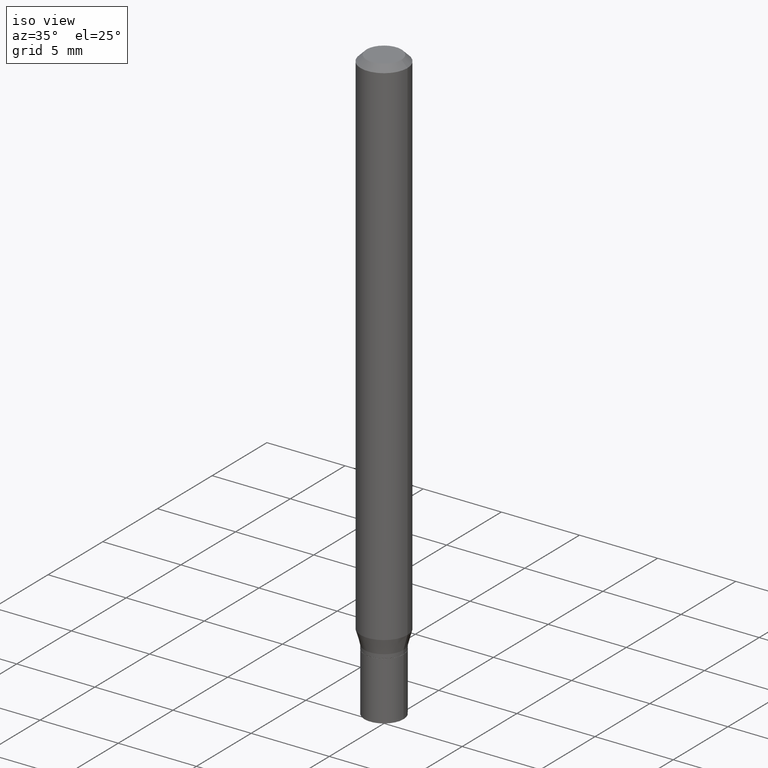
[diagram: clean part render]
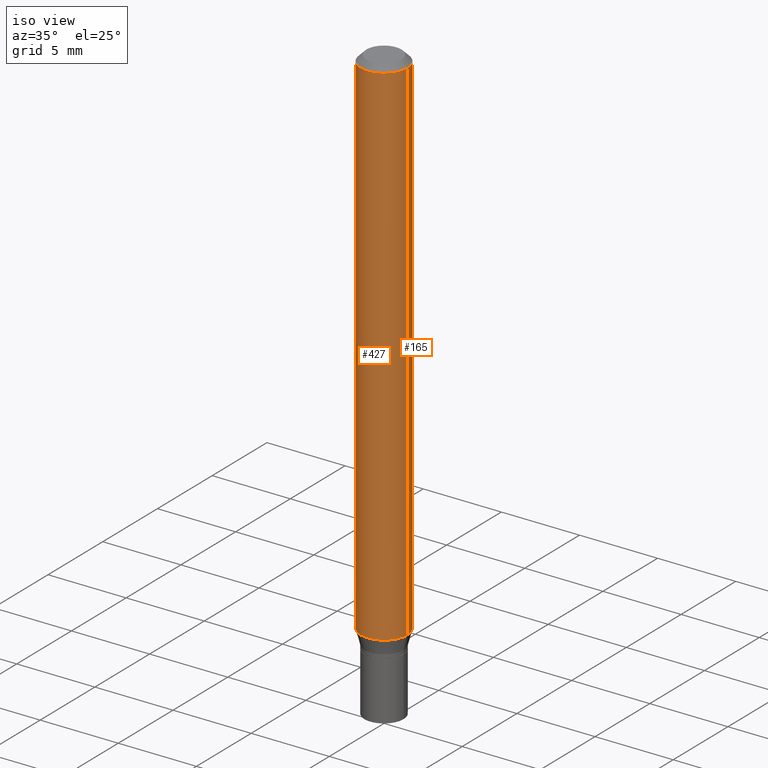
[diagram: same view with one multi-face feature highlighted, each face labeled with its STEP entity id]
A machine part, iso view. The highlighted faces form ONE feature: a constant-radius fillet chain: 2 tangent blend faces with common blend radius 1.4999 mm. The faces share edges in the B-rep.
Their STEP definitions:
[1] entity #427 (Cylinder):
#6 = CARTESIAN_POINT ( 'NONE',  ( 0.000000000000000000, 0.000000000000000000, 0.000000000000000000 ) ) ;
#7 = ORIENTED_EDGE ( 'NONE', *, *, #293, .T. ) ;
#41 = DIRECTION ( 'NONE',  ( -2.445468806185136877E-29, 3.491481338843145188E-15, 1.000000000000000000 ) ) ;
#50 = CARTESIAN_POINT ( 'NONE',  ( 0.05904999999999999832, -4.970959195740536831E-15, -1.305639299545446663 ) ) ;
#53 = EDGE_LOOP ( 'NONE', ( #110, #366, #7, #333 ) ) ;
#78 = CARTESIAN_POINT ( 'NONE',  ( 0.05904999999999999832, -4.123439461173740327E-16, 2.879382386107500220E-30 ) ) ;
#80 = CYLINDRICAL_SURFACE ( 'NONE', #178, 0.05904999999999999832 ) ;
#81 = CARTESIAN_POINT ( 'NONE',  ( -0.05904999999999999832, 4.195754854663391478E-16, -2.904631170795521892E-30 ) ) ;
#90 = CARTESIAN_POINT ( 'NONE',  ( -0.05904999999999999832, -4.139039764156823207E-15, -1.305639299545446663 ) ) ;
#108 = VECTOR ( 'NONE', #41, 39.37007874015748143 ) ;
#109 = VERTEX_POINT ( 'NONE', #50 ) ;
#110 = ORIENTED_EDGE ( 'NONE', *, *, #318, .F. ) ;
#111 = EDGE_CURVE ( 'NONE', #342, #109, #112, .T. ) ;
#112 = CIRCLE ( 'NONE', #425, 0.05904999999999999832 ) ;
#116 = FACE_OUTER_BOUND ( 'NONE', #53, .T. ) ;
#178 = AXIS2_PLACEMENT_3D ( 'NONE', #6, #265, #226 ) ;
#180 = DIRECTION ( 'NONE',  ( -2.445468806185136877E-29, 3.491481338843145188E-15, 1.000000000000000000 ) ) ;
#193 = LINE ( 'NONE', #81, #108 ) ;
#226 = DIRECTION ( 'NONE',  ( 1.000000000000000000, -6.982962677686266711E-15, 4.876176775795936353E-29 ) ) ;
#228 = DIRECTION ( 'NONE',  ( 1.000000000000000000, -6.982962677686266711E-15, 0.000000000000000000 ) ) ;
#240 = VECTOR ( 'NONE', #180, 39.37007874015748143 ) ;
#248 = CIRCLE ( 'NONE', #408, 0.05904999999999999832 ) ;
#259 = CARTESIAN_POINT ( 'NONE',  ( 3.668203209277705088E-31, -5.237222008264718399E-17, -0.01499999999999999944 ) ) ;
#265 = DIRECTION ( 'NONE',  ( -2.445468806185136597E-29, 3.491481338843145583E-15, 1.000000000000000000 ) ) ;
#273 = CARTESIAN_POINT ( 'NONE',  ( 0.05904999999999999832, -4.647161662000212105E-16, -0.01499999999999999944 ) ) ;
#291 = VERTEX_POINT ( 'NONE', #273 ) ;
#293 = EDGE_CURVE ( 'NONE', #109, #291, #365, .T. ) ;
#298 = DIRECTION ( 'NONE',  ( -2.445468806185136597E-29, 3.491481338843145583E-15, 1.000000000000000000 ) ) ;
#301 = VERTEX_POINT ( 'NONE', #337 ) ;
#303 = DIRECTION ( 'NONE',  ( -2.445468806185136597E-29, 3.491481338843145583E-15, 1.000000000000000000 ) ) ;
#304 = EDGE_CURVE ( 'NONE', #301, #291, #248, .T. ) ;
#318 = EDGE_CURVE ( 'NONE', #342, #301, #193, .T. ) ;
#333 = ORIENTED_EDGE ( 'NONE', *, *, #304, .F. ) ;
#337 = CARTESIAN_POINT ( 'NONE',  ( -0.05904999999999999832, -1.885918249386565594E-15, -0.01499999999999999944 ) ) ;
#342 = VERTEX_POINT ( 'NONE', #90 ) ;
#351 = DIRECTION ( 'NONE',  ( 1.000000000000000000, -6.982962677686273021E-15, 0.000000000000000000 ) ) ;
#365 = LINE ( 'NONE', #78, #240 ) ;
#366 = ORIENTED_EDGE ( 'NONE', *, *, #111, .T. ) ;
#408 = AXIS2_PLACEMENT_3D ( 'NONE', #259, #298, #228 ) ;
#425 = AXIS2_PLACEMENT_3D ( 'NONE', #432, #303, #351 ) ;
#427 = ADVANCED_FACE ( 'NONE', ( #116 ), #80, .T. ) ;
#432 = CARTESIAN_POINT ( 'NONE',  ( 3.192900179167801358E-29, -4.558615249623162700E-15, -1.305639299545446663 ) ) ;
[2] entity #165 (Cylinder):
#8 = DIRECTION ( 'NONE',  ( -2.445468806185136597E-29, 3.491481338843145583E-15, 1.000000000000000000 ) ) ;
#16 = DIRECTION ( 'NONE',  ( 1.000000000000000000, -6.982962677686266711E-15, 4.876176775795936353E-29 ) ) ;
#41 = DIRECTION ( 'NONE',  ( -2.445468806185136877E-29, 3.491481338843145188E-15, 1.000000000000000000 ) ) ;
#42 = AXIS2_PLACEMENT_3D ( 'NONE', #308, #449, #353 ) ;
#50 = CARTESIAN_POINT ( 'NONE',  ( 0.05904999999999999832, -4.970959195740536831E-15, -1.305639299545446663 ) ) ;
#67 = EDGE_CURVE ( 'NONE', #109, #342, #378, .T. ) ;
#74 = ORIENTED_EDGE ( 'NONE', *, *, #318, .T. ) ;
#78 = CARTESIAN_POINT ( 'NONE',  ( 0.05904999999999999832, -4.123439461173740327E-16, 2.879382386107500220E-30 ) ) ;
#81 = CARTESIAN_POINT ( 'NONE',  ( -0.05904999999999999832, 4.195754854663391478E-16, -2.904631170795521892E-30 ) ) ;
#90 = CARTESIAN_POINT ( 'NONE',  ( -0.05904999999999999832, -4.139039764156823207E-15, -1.305639299545446663 ) ) ;
#108 = VECTOR ( 'NONE', #41, 39.37007874015748143 ) ;
#109 = VERTEX_POINT ( 'NONE', #50 ) ;
#122 = ORIENTED_EDGE ( 'NONE', *, *, #321, .F. ) ;
#138 = ORIENTED_EDGE ( 'NONE', *, *, #67, .T. ) ;
#165 = ADVANCED_FACE ( 'NONE', ( #272 ), #195, .T. ) ;
#180 = DIRECTION ( 'NONE',  ( -2.445468806185136877E-29, 3.491481338843145188E-15, 1.000000000000000000 ) ) ;
#184 = ORIENTED_EDGE ( 'NONE', *, *, #293, .F. ) ;
#189 = CARTESIAN_POINT ( 'NONE',  ( 3.668203209277705088E-31, -5.237222008264718399E-17, -0.01499999999999999944 ) ) ;
#191 = EDGE_LOOP ( 'NONE', ( #138, #74, #122, #184 ) ) ;
#193 = LINE ( 'NONE', #81, #108 ) ;
#195 = CYLINDRICAL_SURFACE ( 'NONE', #261, 0.05904999999999999832 ) ;
#240 = VECTOR ( 'NONE', #180, 39.37007874015748143 ) ;
#261 = AXIS2_PLACEMENT_3D ( 'NONE', #348, #311, #16 ) ;
#272 = FACE_OUTER_BOUND ( 'NONE', #191, .T. ) ;
#273 = CARTESIAN_POINT ( 'NONE',  ( 0.05904999999999999832, -4.647161662000212105E-16, -0.01499999999999999944 ) ) ;
#291 = VERTEX_POINT ( 'NONE', #273 ) ;
#293 = EDGE_CURVE ( 'NONE', #109, #291, #365, .T. ) ;
#301 = VERTEX_POINT ( 'NONE', #337 ) ;
#308 = CARTESIAN_POINT ( 'NONE',  ( 3.192900179167801358E-29, -4.558615249623162700E-15, -1.305639299545446663 ) ) ;
#311 = DIRECTION ( 'NONE',  ( -2.445468806185136597E-29, 3.491481338843145583E-15, 1.000000000000000000 ) ) ;
#318 = EDGE_CURVE ( 'NONE', #342, #301, #193, .T. ) ;
#321 = EDGE_CURVE ( 'NONE', #291, #301, #404, .T. ) ;
#334 = DIRECTION ( 'NONE',  ( 1.000000000000000000, -6.982962677686266711E-15, 0.000000000000000000 ) ) ;
#337 = CARTESIAN_POINT ( 'NONE',  ( -0.05904999999999999832, -1.885918249386565594E-15, -0.01499999999999999944 ) ) ;
#341 = AXIS2_PLACEMENT_3D ( 'NONE', #189, #8, #334 ) ;
#342 = VERTEX_POINT ( 'NONE', #90 ) ;
#348 = CARTESIAN_POINT ( 'NONE',  ( 0.000000000000000000, 0.000000000000000000, 0.000000000000000000 ) ) ;
#353 = DIRECTION ( 'NONE',  ( 1.000000000000000000, -6.982962677686273021E-15, 0.000000000000000000 ) ) ;
#365 = LINE ( 'NONE', #78, #240 ) ;
#378 = CIRCLE ( 'NONE', #42, 0.05904999999999999832 ) ;
#404 = CIRCLE ( 'NONE', #341, 0.05904999999999999832 ) ;
#449 = DIRECTION ( 'NONE',  ( -2.445468806185136597E-29, 3.491481338843145583E-15, 1.000000000000000000 ) ) ;